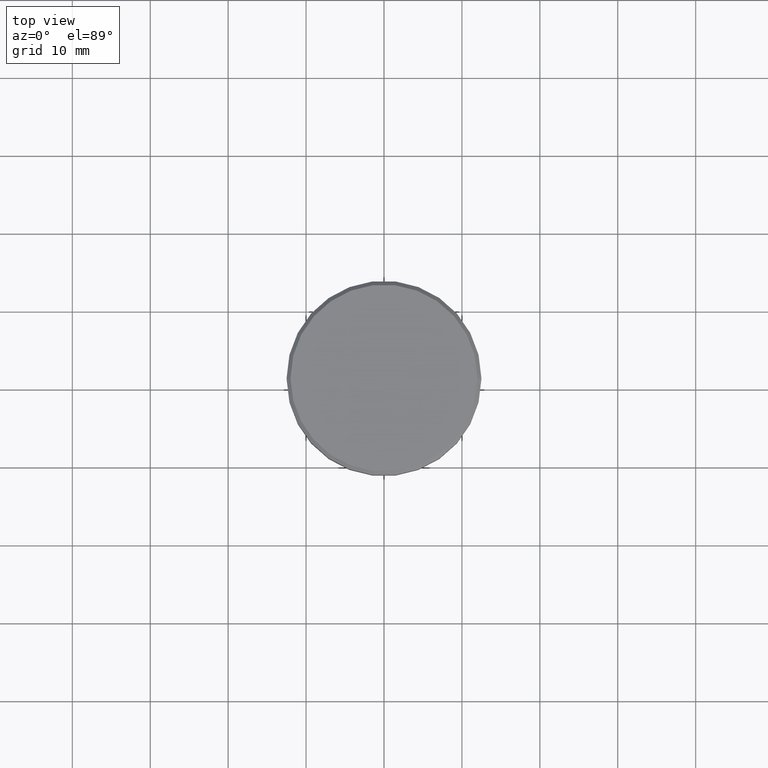
[diagram: clean part render]
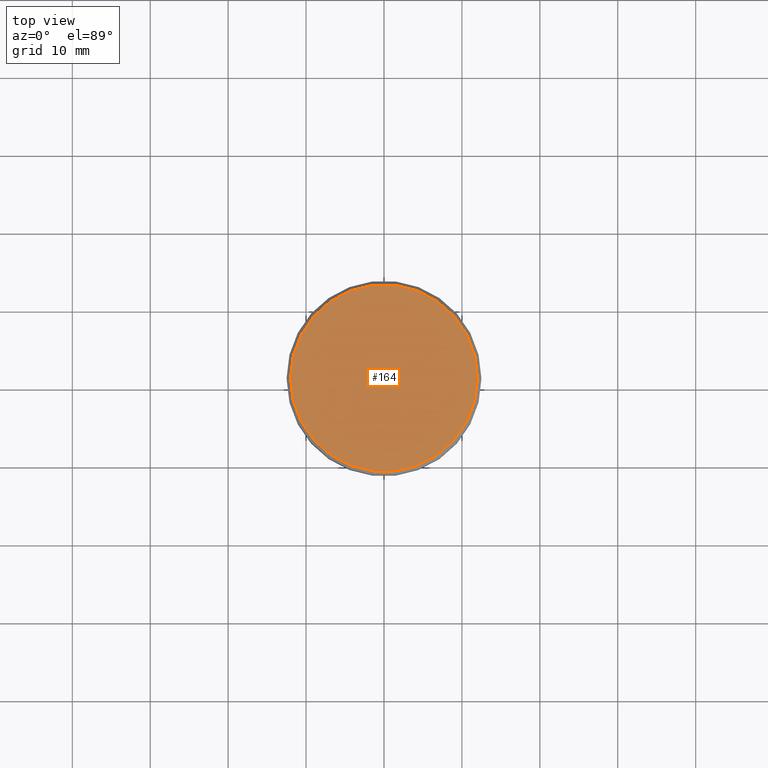
[diagram: same view with one face highlighted and labeled with its STEP entity id]
A machine part, top view. The second image highlights one B-rep face of the part: STEP entity #164.
In plain terms, the highlighted planar face has unit normal (0, -0, 1).
Its self-contained STEP definition (entity closure, byte-faithful):
#86 = FACE_OUTER_BOUND ( 'NONE', #294, .T. ) ;
#160 = VERTEX_POINT ( 'NONE', #697 ) ;
#164 = ADVANCED_FACE ( 'NONE', ( #86 ), #624, .T. ) ;
#253 = DIRECTION ( 'NONE',  ( 0.000000000000000000, -0.000000000000000000, 1.000000000000000000 ) ) ;
#263 = DIRECTION ( 'NONE',  ( -0.000000000000000000, -0.000000000000000000, 1.000000000000000000 ) ) ;
#294 = EDGE_LOOP ( 'NONE', ( #663, #472 ) ) ;
#472 = ORIENTED_EDGE ( 'NONE', *, *, #531, .T. ) ;
#478 = CARTESIAN_POINT ( 'NONE',  ( -11.99999999999999645, 0.000000000000000000, 0.000000000000000000 ) ) ;
#524 = CARTESIAN_POINT ( 'NONE',  ( 0.000000000000000000, 0.000000000000000000, 0.000000000000000000 ) ) ;
#531 = EDGE_CURVE ( 'NONE', #160, #871, #540, .T. ) ;
#540 = CIRCLE ( 'NONE', #1178, 11.99999999999999645 ) ;
#542 = DIRECTION ( 'NONE',  ( 1.000000000000000000, 0.000000000000000000, 0.000000000000000000 ) ) ;
#590 = EDGE_CURVE ( 'NONE', #871, #160, #1032, .T. ) ;
#624 = PLANE ( 'NONE',  #936 ) ;
#663 = ORIENTED_EDGE ( 'NONE', *, *, #590, .T. ) ;
#696 = CARTESIAN_POINT ( 'NONE',  ( 0.000000000000000000, 0.000000000000000000, 0.000000000000000000 ) ) ;
#697 = CARTESIAN_POINT ( 'NONE',  ( 11.99999999999999645, 1.500192328955507537E-15, 0.000000000000000000 ) ) ;
#704 = DIRECTION ( 'NONE',  ( -0.000000000000000000, -0.000000000000000000, 1.000000000000000000 ) ) ;
#715 = CARTESIAN_POINT ( 'NONE',  ( 0.000000000000000000, 0.000000000000000000, 0.000000000000000000 ) ) ;
#815 = DIRECTION ( 'NONE',  ( 1.000000000000000000, 0.000000000000000000, 0.000000000000000000 ) ) ;
#871 = VERTEX_POINT ( 'NONE', #478 ) ;
#886 = AXIS2_PLACEMENT_3D ( 'NONE', #696, #263, #815 ) ;
#936 = AXIS2_PLACEMENT_3D ( 'NONE', #715, #253, #1135 ) ;
#1032 = CIRCLE ( 'NONE', #886, 11.99999999999999645 ) ;
#1135 = DIRECTION ( 'NONE',  ( 1.000000000000000000, 0.000000000000000000, 0.000000000000000000 ) ) ;
#1178 = AXIS2_PLACEMENT_3D ( 'NONE', #524, #704, #542 ) ;